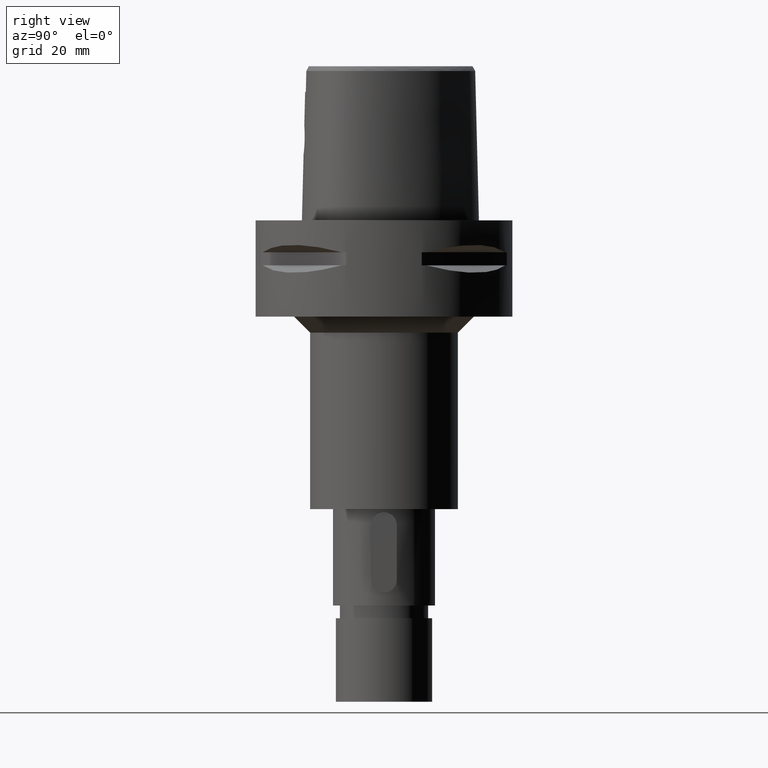
[diagram: clean part render]
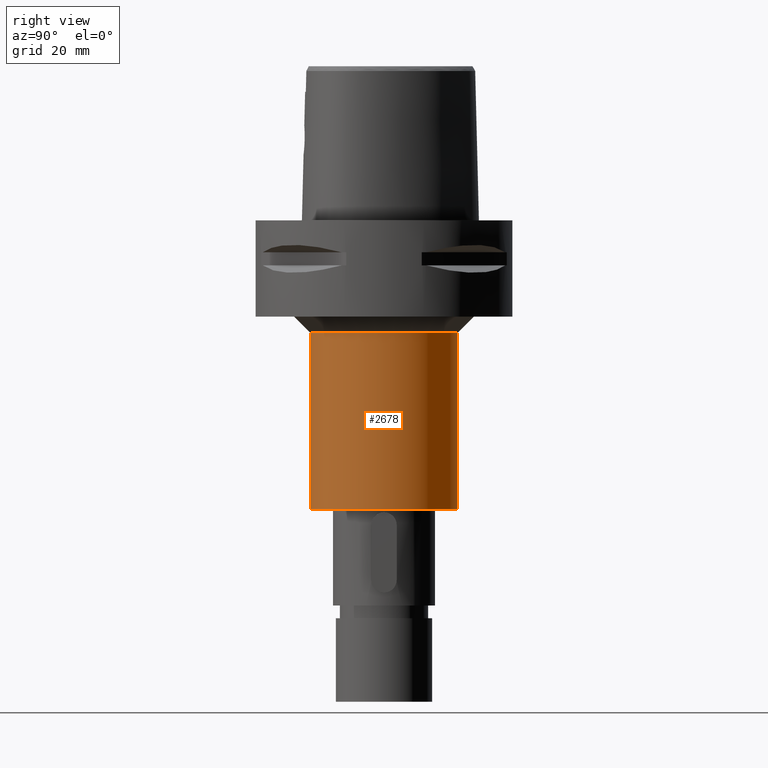
[diagram: same view with one face highlighted and labeled with its STEP entity id]
A machine part, right view. The second image highlights one B-rep face of the part: STEP entity #2678.
In plain terms, the highlighted cylindrical surface (partial cylindrical patch) has radius 23 mm, axis along (0, 0, -1).
Its self-contained STEP definition (entity closure, byte-faithful):
#577=CARTESIAN_POINT('',(0.E0,0.E0,-3.5E1));
#578=DIRECTION('',(0.E0,0.E0,-1.E0));
#579=DIRECTION('',(0.E0,1.E0,0.E0));
#580=AXIS2_PLACEMENT_3D('',#577,#578,#579);
#600=DIRECTION('',(0.E0,0.E0,-1.E0));
#601=VECTOR('',#600,5.5E1);
#602=CARTESIAN_POINT('',(0.E0,-2.3E1,-3.5E1));
#603=LINE('',#602,#601);
#607=DIRECTION('',(0.E0,0.E0,-1.E0));
#608=VECTOR('',#607,5.5E1);
#609=CARTESIAN_POINT('',(0.E0,2.3E1,-3.5E1));
#610=LINE('',#609,#608);
#622=CARTESIAN_POINT('',(0.E0,1.316495309083E-14,-9.E1));
#623=DIRECTION('',(0.E0,0.E0,1.E0));
#624=DIRECTION('',(0.E0,-1.E0,0.E0));
#625=AXIS2_PLACEMENT_3D('',#622,#623,#624);
#1660=CARTESIAN_POINT('',(0.E0,2.3E1,-3.5E1));
#1661=VERTEX_POINT('',#1660);
#1662=CARTESIAN_POINT('',(0.E0,-2.3E1,-3.5E1));
#1663=VERTEX_POINT('',#1662);
#1664=CARTESIAN_POINT('',(0.E0,2.3E1,-9.E1));
#1665=VERTEX_POINT('',#1664);
#1666=CARTESIAN_POINT('',(0.E0,-2.3E1,-9.E1));
#1667=VERTEX_POINT('',#1666);
#2666=CARTESIAN_POINT('',(0.E0,1.316495309083E-14,7.5E0));
#2667=DIRECTION('',(0.E0,0.E0,-1.E0));
#2668=DIRECTION('',(0.E0,-1.E0,0.E0));
#2669=AXIS2_PLACEMENT_3D('',#2666,#2667,#2668);
#2670=CYLINDRICAL_SURFACE('',#2669,2.3E1);
#2671=ORIENTED_EDGE('',*,*,#2656,.T.);
#2673=ORIENTED_EDGE('',*,*,#2672,.F.);
#2674=ORIENTED_EDGE('',*,*,#2659,.F.);
#2675=ORIENTED_EDGE('',*,*,#2630,.F.);
#2676=EDGE_LOOP('',(#2671,#2673,#2674,#2675));
#2677=FACE_OUTER_BOUND('',#2676,.F.);
#581=CIRCLE('',#580,2.3E1);
#626=CIRCLE('',#625,2.3E1);
#2630=EDGE_CURVE('',#1661,#1663,#581,.T.);
#2656=EDGE_CURVE('',#1661,#1665,#610,.T.);
#2659=EDGE_CURVE('',#1663,#1667,#603,.T.);
#2672=EDGE_CURVE('',#1667,#1665,#626,.T.);
#2678=ADVANCED_FACE('',(#2677),#2670,.T.);